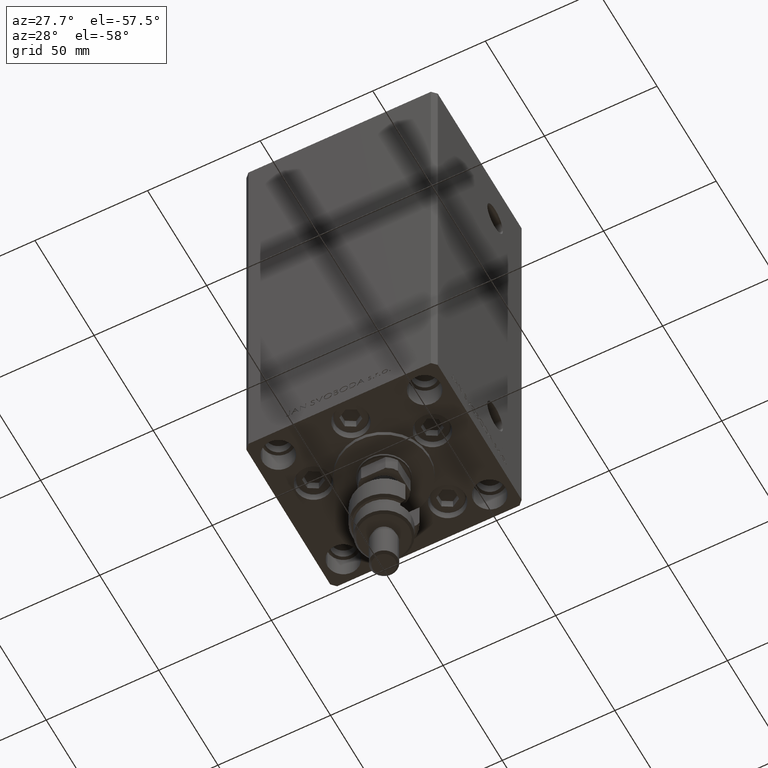
[diagram: clean part render]
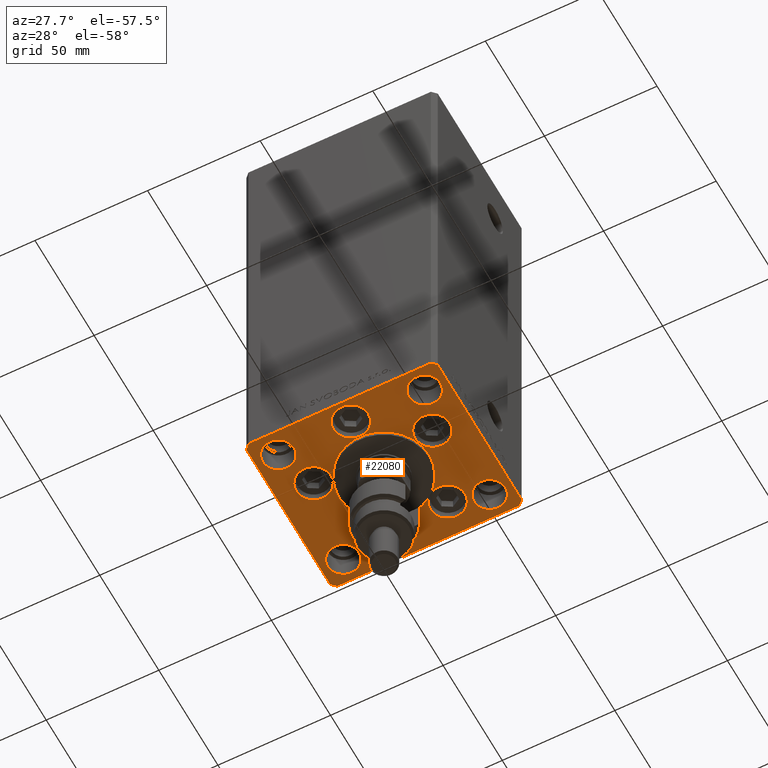
[diagram: same view with one face highlighted and labeled with its STEP entity id]
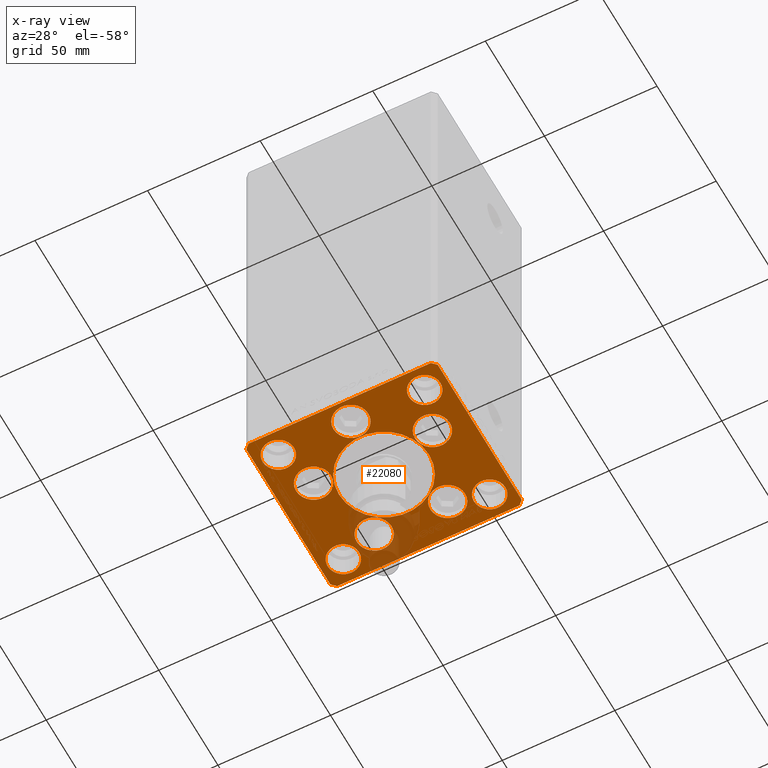
[diagram: x-ray of the same camera — body ghosted, the highlighted face saturated]
A machine part, auxiliary view. The second image highlights one B-rep face of the part: STEP entity #22080.
The next image is the same camera in x-ray: the body ghosted, the highlighted face saturated — about 10% of this face is hidden behind the body in this view.
In plain terms, the highlighted planar face has unit normal (0, 0, -1).
Its self-contained STEP definition (entity closure, byte-faithful):
#7 = CARTESIAN_POINT ( 'NONE',  ( 32.50000000000000000, 27.49999999999999645, 0.000000000000000000 ) ) ;
#60 = FACE_BOUND ( 'NONE', #36094, .T. ) ;
#252 = CIRCLE ( 'NONE', #19786, 7.750000000000000000 ) ;
#429 = CARTESIAN_POINT ( 'NONE',  ( -16.32291334290544071, 22.74999999999999289, 0.000000000000000000 ) ) ;
#554 = FACE_BOUND ( 'NONE', #12411, .T. ) ;
#777 = VERTEX_POINT ( 'NONE', #6927 ) ;
#944 = AXIS2_PLACEMENT_3D ( 'NONE', #10248, #5401, #21477 ) ;
#1000 = CIRCLE ( 'NONE', #24562, 6.999999999999999112 ) ;
#1036 = DIRECTION ( 'NONE',  ( 0.000000000000000000, 0.000000000000000000, 1.000000000000000000 ) ) ;
#1925 = LINE ( 'NONE', #9560, #40089 ) ;
#1996 = EDGE_CURVE ( 'NONE', #33953, #42317, #12799, .T. ) ;
#2100 = ORIENTED_EDGE ( 'NONE', *, *, #48863, .T. ) ;
#2166 = VERTEX_POINT ( 'NONE', #3225 ) ;
#2305 = EDGE_LOOP ( 'NONE', ( #23159, #42500 ) ) ;
#2361 = CARTESIAN_POINT ( 'NONE',  ( 32.50000000000000000, -27.50000000000000355, 0.000000000000000000 ) ) ;
#2570 = LINE ( 'NONE', #40555, #26494 ) ;
#2766 = DIRECTION ( 'NONE',  ( 0.7071067811865474617, 0.7071067811865474617, 0.000000000000000000 ) ) ;
#2944 = DIRECTION ( 'NONE',  ( 9.773090005503134168E-17, -1.000000000000000000, 0.000000000000000000 ) ) ;
#3034 = CARTESIAN_POINT ( 'NONE',  ( -42.50000000000000000, -35.50000000000004263, 0.000000000000000000 ) ) ;
#3106 = ORIENTED_EDGE ( 'NONE', *, *, #33257, .F. ) ;
#3191 = CARTESIAN_POINT ( 'NONE',  ( 32.50000000000000000, -27.50000000000000355, 0.000000000000000000 ) ) ;
#3225 = CARTESIAN_POINT ( 'NONE',  ( 39.50000000000000000, 27.49999999999999645, 0.000000000000000000 ) ) ;
#3531 = ORIENTED_EDGE ( 'NONE', *, *, #4060, .F. ) ;
#3886 = FACE_BOUND ( 'NONE', #30113, .T. ) ;
#4060 = EDGE_CURVE ( 'NONE', #777, #10207, #43815, .T. ) ;
#4103 = VECTOR ( 'NONE', #38510, 1000.000000000000000 ) ;
#4124 = PLANE ( 'NONE',  #14078 ) ;
#4218 = DIRECTION ( 'NONE',  ( 0.000000000000000000, 0.000000000000000000, 1.000000000000000000 ) ) ;
#4338 = EDGE_CURVE ( 'NONE', #20573, #17373, #18600, .T. ) ;
#4414 = ORIENTED_EDGE ( 'NONE', *, *, #8462, .T. ) ;
#4491 = CARTESIAN_POINT ( 'NONE',  ( 26.39865316429777664, -9.333333333333330373, 0.000000000000000000 ) ) ;
#4954 = CIRCLE ( 'NONE', #32638, 20.00000000000000000 ) ;
#5032 = CIRCLE ( 'NONE', #27017, 7.750000000000000000 ) ;
#5401 = DIRECTION ( 'NONE',  ( 0.000000000000000000, 0.000000000000000000, 1.000000000000000000 ) ) ;
#6492 = LINE ( 'NONE', #21806, #45019 ) ;
#6634 = CARTESIAN_POINT ( 'NONE',  ( -32.50000000000000000, -27.50000000000000355, 0.000000000000000000 ) ) ;
#6880 = AXIS2_PLACEMENT_3D ( 'NONE', #42456, #23318, #23076 ) ;
#6927 = CARTESIAN_POINT ( 'NONE',  ( -20.00000000000000000, -6.938893903907228378E-15, 0.000000000000000000 ) ) ;
#6977 = EDGE_LOOP ( 'NONE', ( #28486, #11079 ) ) ;
#7262 = DIRECTION ( 'NONE',  ( 1.000000000000000000, 0.000000000000000000, 0.000000000000000000 ) ) ;
#7309 = EDGE_LOOP ( 'NONE', ( #48271, #13009 ) ) ;
#7441 = CARTESIAN_POINT ( 'NONE',  ( -25.50000000000000355, -27.50000000000000355, 0.000000000000000000 ) ) ;
#7466 = DIRECTION ( 'NONE',  ( 1.000000000000000000, 0.000000000000000000, 0.000000000000000000 ) ) ;
#7691 = ORIENTED_EDGE ( 'NONE', *, *, #41062, .F. ) ;
#7714 = FACE_OUTER_BOUND ( 'NONE', #28751, .T. ) ;
#7772 = CARTESIAN_POINT ( 'NONE',  ( -39.50000000000000000, -27.50000000000000355, 0.000000000000000000 ) ) ;
#7831 = DIRECTION ( 'NONE',  ( 0.000000000000000000, 0.000000000000000000, 1.000000000000000000 ) ) ;
#7960 = FACE_BOUND ( 'NONE', #2305, .T. ) ;
#8462 = EDGE_CURVE ( 'NONE', #28409, #19784, #14911, .T. ) ;
#8686 = VERTEX_POINT ( 'NONE', #7441 ) ;
#8943 = VERTEX_POINT ( 'NONE', #3034 ) ;
#9217 = CARTESIAN_POINT ( 'NONE',  ( -34.14865316429777664, -9.333333333333328596, 0.000000000000000000 ) ) ;
#9312 = VECTOR ( 'NONE', #27425, 1000.000000000000000 ) ;
#9536 = DIRECTION ( 'NONE',  ( 1.000000000000000000, 0.000000000000000000, 0.000000000000000000 ) ) ;
#9560 = CARTESIAN_POINT ( 'NONE',  ( 40.50000000000000711, 37.50000000000000711, 0.000000000000000000 ) ) ;
#9596 = EDGE_CURVE ( 'NONE', #27206, #38227, #31671, .T. ) ;
#9725 = DIRECTION ( 'NONE',  ( 0.000000000000000000, 0.000000000000000000, 1.000000000000000000 ) ) ;
#9871 = VERTEX_POINT ( 'NONE', #38099 ) ;
#10051 = AXIS2_PLACEMENT_3D ( 'NONE', #429, #39175, #27196 ) ;
#10207 = VERTEX_POINT ( 'NONE', #43114 ) ;
#10248 = CARTESIAN_POINT ( 'NONE',  ( -16.32291334290544071, 22.74999999999999289, 0.000000000000000000 ) ) ;
#10538 = CARTESIAN_POINT ( 'NONE',  ( 25.50000000000000355, 27.49999999999999645, 0.000000000000000000 ) ) ;
#11079 = ORIENTED_EDGE ( 'NONE', *, *, #20851, .F. ) ;
#11341 = DIRECTION ( 'NONE',  ( -0.7071067811865536790, -0.7071067811865414665, 0.000000000000000000 ) ) ;
#11653 = VERTEX_POINT ( 'NONE', #38923 ) ;
#12123 = ORIENTED_EDGE ( 'NONE', *, *, #44346, .F. ) ;
#12376 = VERTEX_POINT ( 'NONE', #9217 ) ;
#12411 = EDGE_LOOP ( 'NONE', ( #3531, #17506 ) ) ;
#12450 = DIRECTION ( 'NONE',  ( 0.000000000000000000, 0.000000000000000000, 1.000000000000000000 ) ) ;
#12474 = CARTESIAN_POINT ( 'NONE',  ( -40.50000000000000711, -37.50000000000003553, 0.000000000000000000 ) ) ;
#12586 = DIRECTION ( 'NONE',  ( 0.000000000000000000, 0.000000000000000000, 1.000000000000000000 ) ) ;
#12799 = CIRCLE ( 'NONE', #47017, 7.750000000000000000 ) ;
#13009 = ORIENTED_EDGE ( 'NONE', *, *, #1996, .F. ) ;
#13030 = CIRCLE ( 'NONE', #21986, 7.750000000000000000 ) ;
#13115 = VERTEX_POINT ( 'NONE', #17138 ) ;
#13340 = EDGE_CURVE ( 'NONE', #2166, #21983, #17140, .T. ) ;
#13587 = EDGE_LOOP ( 'NONE', ( #7691, #16794 ) ) ;
#14078 = AXIS2_PLACEMENT_3D ( 'NONE', #43134, #38312, #7466 ) ;
#14796 = EDGE_CURVE ( 'NONE', #10207, #777, #4954, .T. ) ;
#14911 = LINE ( 'NONE', #45763, #45502 ) ;
#15258 = DIRECTION ( 'NONE',  ( 0.000000000000000000, 0.000000000000000000, 1.000000000000000000 ) ) ;
#15560 = DIRECTION ( 'NONE',  ( 1.000000000000000000, 0.000000000000000000, 0.000000000000000000 ) ) ;
#15734 = DIRECTION ( 'NONE',  ( 1.000000000000000000, 0.000000000000000000, 0.000000000000000000 ) ) ;
#15861 = FACE_BOUND ( 'NONE', #50397, .T. ) ;
#15965 = LINE ( 'NONE', #35830, #9312 ) ;
#16154 = CARTESIAN_POINT ( 'NONE',  ( 42.50000000000001421, 35.50000000000002132, 0.000000000000000000 ) ) ;
#16596 = AXIS2_PLACEMENT_3D ( 'NONE', #33000, #48559, #9536 ) ;
#16794 = ORIENTED_EDGE ( 'NONE', *, *, #48987, .F. ) ;
#17104 = CARTESIAN_POINT ( 'NONE',  ( 16.32291334290544071, 22.74999999999999289, 0.000000000000000000 ) ) ;
#17138 = CARTESIAN_POINT ( 'NONE',  ( -18.64865316429777664, -9.333333333333330373, 0.000000000000000000 ) ) ;
#17140 = CIRCLE ( 'NONE', #17977, 6.999999999999999112 ) ;
#17211 = VERTEX_POINT ( 'NONE', #36652 ) ;
#17373 = VERTEX_POINT ( 'NONE', #31003 ) ;
#17506 = ORIENTED_EDGE ( 'NONE', *, *, #14796, .F. ) ;
#17977 = AXIS2_PLACEMENT_3D ( 'NONE', #44094, #25471, #48695 ) ;
#18201 = ORIENTED_EDGE ( 'NONE', *, *, #36422, .F. ) ;
#18600 = CIRCLE ( 'NONE', #47091, 6.999999999999999112 ) ;
#18690 = EDGE_CURVE ( 'NONE', #8943, #38221, #6492, .T. ) ;
#19784 = VERTEX_POINT ( 'NONE', #19909 ) ;
#19786 = AXIS2_PLACEMENT_3D ( 'NONE', #4491, #7831, #15734 ) ;
#19789 = DIRECTION ( 'NONE',  ( 1.000000000000000000, 0.000000000000000000, 0.000000000000000000 ) ) ;
#19909 = CARTESIAN_POINT ( 'NONE',  ( -42.50000000000000711, 35.50000000000000000, 0.000000000000000000 ) ) ;
#20075 = DIRECTION ( 'NONE',  ( 1.000000000000000000, 0.000000000000000000, 0.000000000000000000 ) ) ;
#20153 = ORIENTED_EDGE ( 'NONE', *, *, #13340, .F. ) ;
#20573 = VERTEX_POINT ( 'NONE', #43242 ) ;
#20634 = EDGE_CURVE ( 'NONE', #38227, #27206, #5032, .T. ) ;
#20649 = EDGE_LOOP ( 'NONE', ( #40848, #3106 ) ) ;
#20851 = EDGE_CURVE ( 'NONE', #11653, #38580, #1000, .T. ) ;
#20923 = DIRECTION ( 'NONE',  ( 1.000000000000000000, 0.000000000000000000, 0.000000000000000000 ) ) ;
#21296 = DIRECTION ( 'NONE',  ( -1.000000000000000000, -4.283267841918041508E-16, 0.000000000000000000 ) ) ;
#21477 = DIRECTION ( 'NONE',  ( 1.000000000000000000, 0.000000000000000000, 0.000000000000000000 ) ) ;
#21595 = CIRCLE ( 'NONE', #46843, 6.999999999999999112 ) ;
#21673 = ORIENTED_EDGE ( 'NONE', *, *, #40271, .F. ) ;
#21806 = CARTESIAN_POINT ( 'NONE',  ( -42.50000000000000000, -35.50000000000004263, 0.000000000000000000 ) ) ;
#21983 = VERTEX_POINT ( 'NONE', #10538 ) ;
#21986 = AXIS2_PLACEMENT_3D ( 'NONE', #17104, #1036, #20923 ) ;
#22080 = ADVANCED_FACE ( 'NONE', ( #554, #60, #34493, #42895, #3886, #7960, #15861, #26836, #26586, #42653, #7714 ), #4124, .T. ) ;
#22092 = CIRCLE ( 'NONE', #944, 7.750000000000000000 ) ;
#22304 = CIRCLE ( 'NONE', #41830, 6.999999999999999112 ) ;
#22544 = CARTESIAN_POINT ( 'NONE',  ( -7.750000000000000000, -28.00000000000000000, 0.000000000000000000 ) ) ;
#22684 = AXIS2_PLACEMENT_3D ( 'NONE', #28833, #43877, #40035 ) ;
#22739 = VERTEX_POINT ( 'NONE', #26144 ) ;
#22902 = DIRECTION ( 'NONE',  ( 1.000000000000000000, 0.000000000000000000, 0.000000000000000000 ) ) ;
#22969 = DIRECTION ( 'NONE',  ( 0.000000000000000000, 0.000000000000000000, 1.000000000000000000 ) ) ;
#23076 = DIRECTION ( 'NONE',  ( 1.000000000000000000, 0.000000000000000000, 0.000000000000000000 ) ) ;
#23159 = ORIENTED_EDGE ( 'NONE', *, *, #41494, .F. ) ;
#23260 = AXIS2_PLACEMENT_3D ( 'NONE', #6634, #45909, #33916 ) ;
#23318 = DIRECTION ( 'NONE',  ( 0.000000000000000000, 0.000000000000000000, 1.000000000000000000 ) ) ;
#23739 = CARTESIAN_POINT ( 'NONE',  ( -42.50000000000000711, 35.50000000000000000, 0.000000000000000000 ) ) ;
#24089 = EDGE_CURVE ( 'NONE', #38580, #11653, #36934, .T. ) ;
#24093 = DIRECTION ( 'NONE',  ( 1.000000000000000000, 0.000000000000000000, 0.000000000000000000 ) ) ;
#24404 = ORIENTED_EDGE ( 'NONE', *, *, #42367, .T. ) ;
#24562 = AXIS2_PLACEMENT_3D ( 'NONE', #3191, #42701, #7262 ) ;
#24876 = AXIS2_PLACEMENT_3D ( 'NONE', #30030, #30286, #30546 ) ;
#25165 = VERTEX_POINT ( 'NONE', #43865 ) ;
#25471 = DIRECTION ( 'NONE',  ( 0.000000000000000000, 0.000000000000000000, 1.000000000000000000 ) ) ;
#25768 = DIRECTION ( 'NONE',  ( 1.000000000000000000, 0.000000000000000000, 0.000000000000000000 ) ) ;
#26129 = EDGE_CURVE ( 'NONE', #19784, #8943, #49607, .T. ) ;
#26144 = CARTESIAN_POINT ( 'NONE',  ( 24.07291334290544071, 22.74999999999999289, 0.000000000000000000 ) ) ;
#26494 = VECTOR ( 'NONE', #36740, 1000.000000000000000 ) ;
#26586 = FACE_BOUND ( 'NONE', #13587, .T. ) ;
#26777 = AXIS2_PLACEMENT_3D ( 'NONE', #31495, #4218, #24093 ) ;
#26836 = FACE_BOUND ( 'NONE', #43913, .T. ) ;
#27017 = AXIS2_PLACEMENT_3D ( 'NONE', #35589, #34848, #19789 ) ;
#27196 = DIRECTION ( 'NONE',  ( 1.000000000000000000, 0.000000000000000000, 0.000000000000000000 ) ) ;
#27206 = VERTEX_POINT ( 'NONE', #34990 ) ;
#27425 = DIRECTION ( 'NONE',  ( 9.773090005503145261E-17, 1.000000000000000000, 0.000000000000000000 ) ) ;
#28255 = CARTESIAN_POINT ( 'NONE',  ( -32.50000000000000000, 27.50000000000000711, 0.000000000000000000 ) ) ;
#28409 = VERTEX_POINT ( 'NONE', #42413 ) ;
#28486 = ORIENTED_EDGE ( 'NONE', *, *, #24089, .F. ) ;
#28751 = EDGE_LOOP ( 'NONE', ( #38387, #39014, #38541, #24404, #2100, #36011, #4414, #37470 ) ) ;
#28833 = CARTESIAN_POINT ( 'NONE',  ( 0.000000000000000000, -6.938893903907228378E-15, 0.000000000000000000 ) ) ;
#29098 = CARTESIAN_POINT ( 'NONE',  ( -32.50000000000000000, -27.50000000000000355, 0.000000000000000000 ) ) ;
#30030 = CARTESIAN_POINT ( 'NONE',  ( -26.39865316429777664, -9.333333333333330373, 0.000000000000000000 ) ) ;
#30113 = EDGE_LOOP ( 'NONE', ( #33292, #48400 ) ) ;
#30286 = DIRECTION ( 'NONE',  ( 0.000000000000000000, 0.000000000000000000, 1.000000000000000000 ) ) ;
#30499 = CIRCLE ( 'NONE', #6880, 7.750000000000000000 ) ;
#30546 = DIRECTION ( 'NONE',  ( 1.000000000000000000, 0.000000000000000000, 0.000000000000000000 ) ) ;
#30976 = AXIS2_PLACEMENT_3D ( 'NONE', #7, #22969, #15560 ) ;
#31003 = CARTESIAN_POINT ( 'NONE',  ( -25.50000000000000355, 27.50000000000000711, 0.000000000000000000 ) ) ;
#31186 = ORIENTED_EDGE ( 'NONE', *, *, #34385, .F. ) ;
#31459 = DIRECTION ( 'NONE',  ( 1.000000000000000000, 0.000000000000000000, 0.000000000000000000 ) ) ;
#31495 = CARTESIAN_POINT ( 'NONE',  ( 0.000000000000000000, -28.00000000000000000, 0.000000000000000000 ) ) ;
#31671 = CIRCLE ( 'NONE', #26777, 7.750000000000000000 ) ;
#32034 = AXIS2_PLACEMENT_3D ( 'NONE', #2361, #34453, #45686 ) ;
#32638 = AXIS2_PLACEMENT_3D ( 'NONE', #45863, #15258, #22902 ) ;
#32943 = VECTOR ( 'NONE', #2766, 1000.000000000000114 ) ;
#33000 = CARTESIAN_POINT ( 'NONE',  ( -26.39865316429777664, -9.333333333333330373, 0.000000000000000000 ) ) ;
#33257 = EDGE_CURVE ( 'NONE', #34250, #22739, #13030, .T. ) ;
#33292 = ORIENTED_EDGE ( 'NONE', *, *, #9596, .F. ) ;
#33707 = CARTESIAN_POINT ( 'NONE',  ( 39.50000000000000000, -27.50000000000000355, 0.000000000000000000 ) ) ;
#33916 = DIRECTION ( 'NONE',  ( 1.000000000000000000, 0.000000000000000000, 0.000000000000000000 ) ) ;
#33953 = VERTEX_POINT ( 'NONE', #41396 ) ;
#34250 = VERTEX_POINT ( 'NONE', #41588 ) ;
#34278 = DIRECTION ( 'NONE',  ( 0.7071067811865487940, -0.7071067811865463515, 0.000000000000000000 ) ) ;
#34385 = EDGE_CURVE ( 'NONE', #21983, #2166, #48898, .T. ) ;
#34453 = DIRECTION ( 'NONE',  ( 0.000000000000000000, 0.000000000000000000, 1.000000000000000000 ) ) ;
#34486 = EDGE_CURVE ( 'NONE', #38221, #9871, #47411, .T. ) ;
#34493 = FACE_BOUND ( 'NONE', #20649, .T. ) ;
#34560 = VECTOR ( 'NONE', #2944, 1000.000000000000000 ) ;
#34809 = CARTESIAN_POINT ( 'NONE',  ( -24.07291334290544071, 22.74999999999999289, 0.000000000000000000 ) ) ;
#34848 = DIRECTION ( 'NONE',  ( 0.000000000000000000, 0.000000000000000000, 1.000000000000000000 ) ) ;
#34990 = CARTESIAN_POINT ( 'NONE',  ( 7.750000000000000000, -28.00000000000000000, 0.000000000000000000 ) ) ;
#35589 = CARTESIAN_POINT ( 'NONE',  ( 0.000000000000000000, -28.00000000000000000, 0.000000000000000000 ) ) ;
#35830 = CARTESIAN_POINT ( 'NONE',  ( 42.50000000000000711, -35.49999999999992895, 0.000000000000000000 ) ) ;
#36011 = ORIENTED_EDGE ( 'NONE', *, *, #38185, .T. ) ;
#36094 = EDGE_LOOP ( 'NONE', ( #21673, #18201 ) ) ;
#36422 = EDGE_CURVE ( 'NONE', #41404, #37855, #22092, .T. ) ;
#36652 = CARTESIAN_POINT ( 'NONE',  ( 42.50000000000000711, -35.49999999999992895, 0.000000000000000000 ) ) ;
#36740 = DIRECTION ( 'NONE',  ( -0.7071067811865524577, 0.7071067811865426878, 0.000000000000000000 ) ) ;
#36934 = CIRCLE ( 'NONE', #32034, 6.999999999999999112 ) ;
#37470 = ORIENTED_EDGE ( 'NONE', *, *, #26129, .T. ) ;
#37689 = CARTESIAN_POINT ( 'NONE',  ( 40.50000000000001421, -37.49999999999992184, 0.000000000000000000 ) ) ;
#37855 = VERTEX_POINT ( 'NONE', #49642 ) ;
#37917 = CIRCLE ( 'NONE', #24876, 7.750000000000000000 ) ;
#38099 = CARTESIAN_POINT ( 'NONE',  ( 40.50000000000001421, -37.49999999999992184, 0.000000000000000000 ) ) ;
#38185 = EDGE_CURVE ( 'NONE', #25165, #28409, #1925, .T. ) ;
#38221 = VERTEX_POINT ( 'NONE', #49080 ) ;
#38227 = VERTEX_POINT ( 'NONE', #22544 ) ;
#38312 = DIRECTION ( 'NONE',  ( -0.000000000000000000, 0.000000000000000000, 1.000000000000000000 ) ) ;
#38387 = ORIENTED_EDGE ( 'NONE', *, *, #18690, .T. ) ;
#38471 = ORIENTED_EDGE ( 'NONE', *, *, #4338, .F. ) ;
#38510 = DIRECTION ( 'NONE',  ( 1.000000000000000000, 1.370645709413773283E-15, 0.000000000000000000 ) ) ;
#38541 = ORIENTED_EDGE ( 'NONE', *, *, #47068, .T. ) ;
#38580 = VERTEX_POINT ( 'NONE', #33707 ) ;
#38923 = CARTESIAN_POINT ( 'NONE',  ( 25.50000000000000355, -27.50000000000000355, 0.000000000000000000 ) ) ;
#39014 = ORIENTED_EDGE ( 'NONE', *, *, #34486, .T. ) ;
#39175 = DIRECTION ( 'NONE',  ( 0.000000000000000000, 0.000000000000000000, 1.000000000000000000 ) ) ;
#39447 = DIRECTION ( 'NONE',  ( 0.000000000000000000, 0.000000000000000000, 1.000000000000000000 ) ) ;
#40035 = DIRECTION ( 'NONE',  ( 1.000000000000000000, 0.000000000000000000, 0.000000000000000000 ) ) ;
#40089 = VECTOR ( 'NONE', #21296, 1000.000000000000000 ) ;
#40170 = EDGE_CURVE ( 'NONE', #42317, #33953, #252, .T. ) ;
#40271 = EDGE_CURVE ( 'NONE', #37855, #41404, #42630, .T. ) ;
#40482 = VERTEX_POINT ( 'NONE', #7772 ) ;
#40555 = CARTESIAN_POINT ( 'NONE',  ( 42.50000000000001421, 35.50000000000002132, 0.000000000000000000 ) ) ;
#40848 = ORIENTED_EDGE ( 'NONE', *, *, #46597, .F. ) ;
#41062 = EDGE_CURVE ( 'NONE', #8686, #40482, #22304, .T. ) ;
#41396 = CARTESIAN_POINT ( 'NONE',  ( 18.64865316429777664, -9.333333333333328596, 0.000000000000000000 ) ) ;
#41404 = VERTEX_POINT ( 'NONE', #34809 ) ;
#41494 = EDGE_CURVE ( 'NONE', #13115, #12376, #44251, .T. ) ;
#41588 = CARTESIAN_POINT ( 'NONE',  ( 8.572913342905442491, 22.74999999999999289, 0.000000000000000000 ) ) ;
#41774 = LINE ( 'NONE', #37689, #32943 ) ;
#41830 = AXIS2_PLACEMENT_3D ( 'NONE', #29098, #9725, #25768 ) ;
#42317 = VERTEX_POINT ( 'NONE', #49918 ) ;
#42367 = EDGE_CURVE ( 'NONE', #17211, #45070, #15965, .T. ) ;
#42413 = CARTESIAN_POINT ( 'NONE',  ( -40.50000000000000000, 37.49999999999997158, 0.000000000000000000 ) ) ;
#42456 = CARTESIAN_POINT ( 'NONE',  ( 16.32291334290544071, 22.74999999999999289, 0.000000000000000000 ) ) ;
#42500 = ORIENTED_EDGE ( 'NONE', *, *, #50084, .F. ) ;
#42630 = CIRCLE ( 'NONE', #10051, 7.750000000000000000 ) ;
#42653 = FACE_BOUND ( 'NONE', #6977, .T. ) ;
#42701 = DIRECTION ( 'NONE',  ( 0.000000000000000000, 0.000000000000000000, 1.000000000000000000 ) ) ;
#42895 = FACE_BOUND ( 'NONE', #7309, .T. ) ;
#43114 = CARTESIAN_POINT ( 'NONE',  ( 20.00000000000000000, -4.489600305612522259E-15, 0.000000000000000000 ) ) ;
#43134 = CARTESIAN_POINT ( 'NONE',  ( 0.000000000000000000, 0.000000000000000000, 0.000000000000000000 ) ) ;
#43242 = CARTESIAN_POINT ( 'NONE',  ( -39.50000000000000000, 27.50000000000000711, 0.000000000000000000 ) ) ;
#43442 = CARTESIAN_POINT ( 'NONE',  ( -32.50000000000000000, 27.50000000000000711, 0.000000000000000000 ) ) ;
#43815 = CIRCLE ( 'NONE', #22684, 20.00000000000000000 ) ;
#43865 = CARTESIAN_POINT ( 'NONE',  ( 40.50000000000000711, 37.50000000000000711, 0.000000000000000000 ) ) ;
#43877 = DIRECTION ( 'NONE',  ( 0.000000000000000000, 0.000000000000000000, 1.000000000000000000 ) ) ;
#43913 = EDGE_LOOP ( 'NONE', ( #12123, #38471 ) ) ;
#44094 = CARTESIAN_POINT ( 'NONE',  ( 32.50000000000000000, 27.49999999999999645, 0.000000000000000000 ) ) ;
#44251 = CIRCLE ( 'NONE', #16596, 7.750000000000000000 ) ;
#44346 = EDGE_CURVE ( 'NONE', #17373, #20573, #21595, .T. ) ;
#44582 = DIRECTION ( 'NONE',  ( 1.000000000000000000, 0.000000000000000000, 0.000000000000000000 ) ) ;
#45019 = VECTOR ( 'NONE', #34278, 1000.000000000000000 ) ;
#45070 = VERTEX_POINT ( 'NONE', #16154 ) ;
#45249 = CIRCLE ( 'NONE', #23260, 6.999999999999999112 ) ;
#45502 = VECTOR ( 'NONE', #11341, 1000.000000000000000 ) ;
#45686 = DIRECTION ( 'NONE',  ( 1.000000000000000000, 0.000000000000000000, 0.000000000000000000 ) ) ;
#45763 = CARTESIAN_POINT ( 'NONE',  ( -40.50000000000000000, 37.49999999999997158, 0.000000000000000000 ) ) ;
#45863 = CARTESIAN_POINT ( 'NONE',  ( 0.000000000000000000, -6.938893903907228378E-15, 0.000000000000000000 ) ) ;
#45909 = DIRECTION ( 'NONE',  ( 0.000000000000000000, 0.000000000000000000, 1.000000000000000000 ) ) ;
#46597 = EDGE_CURVE ( 'NONE', #22739, #34250, #30499, .T. ) ;
#46843 = AXIS2_PLACEMENT_3D ( 'NONE', #43442, #12586, #31459 ) ;
#47017 = AXIS2_PLACEMENT_3D ( 'NONE', #47871, #39447, #20075 ) ;
#47068 = EDGE_CURVE ( 'NONE', #9871, #17211, #41774, .T. ) ;
#47091 = AXIS2_PLACEMENT_3D ( 'NONE', #28255, #12450, #44582 ) ;
#47411 = LINE ( 'NONE', #12474, #4103 ) ;
#47871 = CARTESIAN_POINT ( 'NONE',  ( 26.39865316429777664, -9.333333333333330373, 0.000000000000000000 ) ) ;
#48271 = ORIENTED_EDGE ( 'NONE', *, *, #40170, .F. ) ;
#48400 = ORIENTED_EDGE ( 'NONE', *, *, #20634, .F. ) ;
#48559 = DIRECTION ( 'NONE',  ( 0.000000000000000000, 0.000000000000000000, 1.000000000000000000 ) ) ;
#48695 = DIRECTION ( 'NONE',  ( 1.000000000000000000, 0.000000000000000000, 0.000000000000000000 ) ) ;
#48863 = EDGE_CURVE ( 'NONE', #45070, #25165, #2570, .T. ) ;
#48898 = CIRCLE ( 'NONE', #30976, 6.999999999999999112 ) ;
#48987 = EDGE_CURVE ( 'NONE', #40482, #8686, #45249, .T. ) ;
#49080 = CARTESIAN_POINT ( 'NONE',  ( -40.50000000000000711, -37.50000000000003553, 0.000000000000000000 ) ) ;
#49607 = LINE ( 'NONE', #23739, #34560 ) ;
#49642 = CARTESIAN_POINT ( 'NONE',  ( -8.572913342905440715, 22.74999999999999289, 0.000000000000000000 ) ) ;
#49918 = CARTESIAN_POINT ( 'NONE',  ( 34.14865316429777664, -9.333333333333330373, 0.000000000000000000 ) ) ;
#50084 = EDGE_CURVE ( 'NONE', #12376, #13115, #37917, .T. ) ;
#50397 = EDGE_LOOP ( 'NONE', ( #20153, #31186 ) ) ;